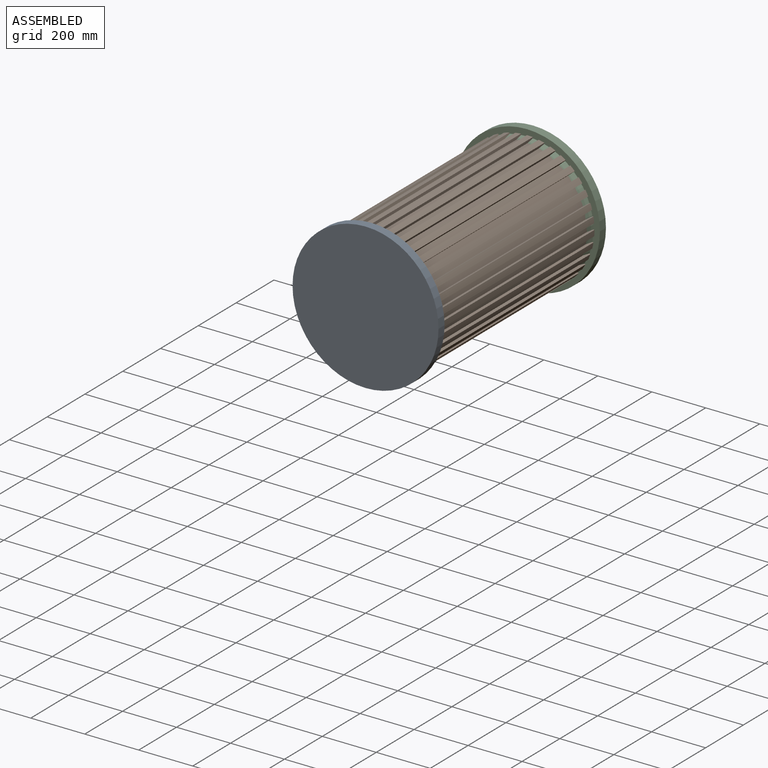
[diagram: assembled view]
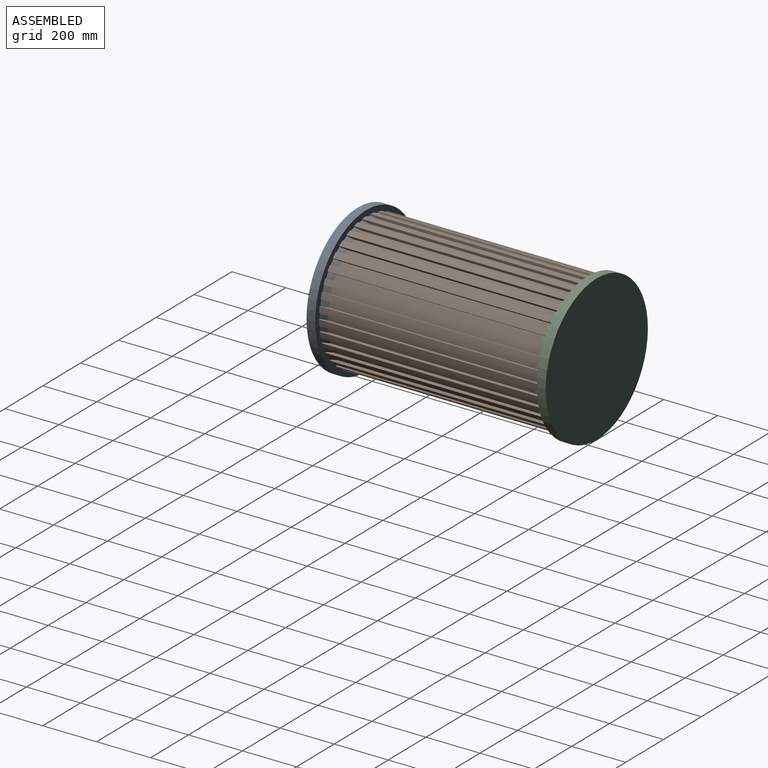
[diagram: assembled view, second angle]
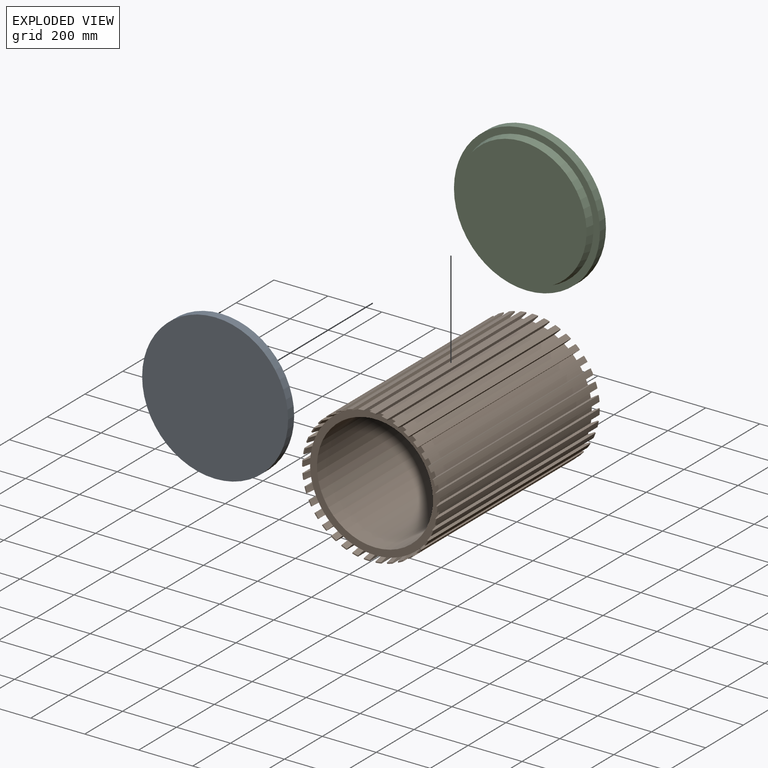
[diagram: exploded view]
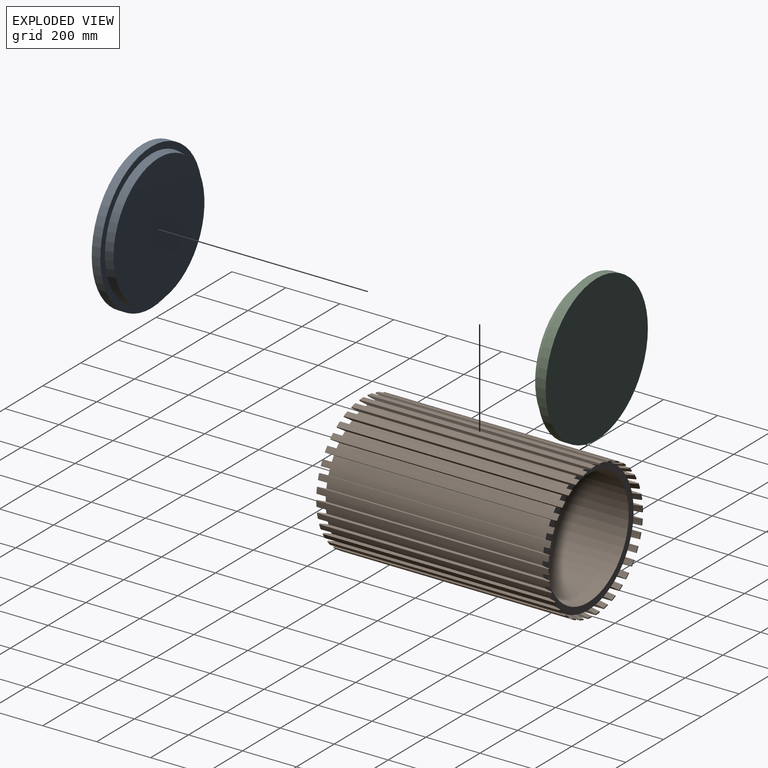
[diagram: exploded view, second angle]
ASSEMBLY  parts=3 mates=2
PART A: 5 faces, bbox 540.8x60x540.8 mm
  f0: plane 540.8x540.8mm, normal (0,1,0), area 229701.2mm2, adj f1
  f1: cylinder r=270.4mm len=540.8mm, axis (0,1,0), area 54419.6mm2, adj f0,f2
  f2: plane 540.8x540.8mm, normal (0,-1,0), area 38965.8mm2, adj f1,f3
  f3: cone r=246.4mm half-angle=12.1deg, axis (0,1,0), area 43793.3mm2, adj f2,f4
  f4: cone r=0mm half-angle=90deg, axis (0,-1,0), area 181559.4mm2, adj f3
PART B: 291 faces, bbox 500.8x860x500.8 mm
  f0: cylinder r=240.4mm len=804mm, axis (0,1,0), area 16867mm2, adj f1,f107,f252,f289
  f1: plane 860x9.96mm, normal (-0.09,0,-1), area 8432mm2, adj f0,f135,f152,f179,f216,f253
  f2: plane 860x10mm, normal (0,0,1), area 8432mm2, adj f3,f135,f152,f179,f216,f253
  f3: cylinder r=240.4mm len=804mm, axis (0,1,0), area 16867mm2, adj f2,f4,f252,f289
  f4: plane 860x9.96mm, normal (0.09,0,-1), area 8432mm2, adj f3,f134,f153,f180,f217,f254
  f5: plane 860x9.85mm, normal (-0.17,0,0.98), area 8432mm2, adj f6,f134,f153,f180,f217,f254
  f6: cylinder r=240.4mm len=804mm, axis (0,1,0), area 16867mm2, adj f5,f7,f252,f289
  f7: plane 860x9.66mm, normal (0.26,0,-0.97), area 8432mm2, adj f6,f133,f154,f181,f218,f255
  f8: plane 860x9.4mm, normal (-0.34,0,0.94), area 8432mm2, adj f9,f133,f154,f181,f218,f255
  f9: cylinder r=240.4mm len=804mm, axis (0,1,0), area 16867mm2, adj f8,f10,f252,f289
  f10: plane 860x9.06mm, normal (0.42,0,-0.91), area 8432mm2, adj f9,f132,f155,f182,f219,f256
  f11: plane 860x8.66mm, normal (-0.5,0,0.87), area 8432mm2, adj f12,f132,f155,f182,f219,f256
  f12: cylinder r=240.4mm len=804mm, axis (0,1,0), area 16867mm2, adj f11,f13,f252,f289
  f13: plane 860x8.19mm, normal (0.57,0,-0.82), area 8432mm2, adj f12,f131,f156,f183,f220,f257
  f14: plane 860x7.66mm, normal (-0.64,0,0.77), area 8432mm2, adj f15,f131,f156,f183,f220,f257
  f15: cylinder r=240.4mm len=804mm, axis (0,1,0), area 16867mm2, adj f14,f16,f252,f289
  f16: plane 860x7.07mm, normal (0.71,0,-0.71), area 8432mm2, adj f15,f130,f157,f184,f221,f258
  f17: plane 860x7.66mm, normal (-0.77,0,0.64), area 8432mm2, adj f18,f130,f157,f184,f221,f258
  f18: cylinder r=240.4mm len=804mm, axis (0,1,0), area 16867mm2, adj f17,f19,f252,f289
  f19: plane 860x8.19mm, normal (0.82,0,-0.57), area 8432mm2, adj f18,f129,f158,f185,f222,f259
  f20: plane 860x8.66mm, normal (-0.87,0,0.5), area 8432mm2, adj f21,f129,f158,f185,f222,f259
  f21: cylinder r=240.4mm len=804mm, axis (0,1,0), area 16867mm2, adj f20,f22,f252,f289
  f22: plane 860x9.06mm, normal (0.91,0,-0.42), area 8432mm2, adj f21,f128,f159,f186,f223,f260
  f23: plane 860x9.4mm, normal (-0.94,0,0.34), area 8432mm2, adj f24,f128,f159,f186,f223,f260
  f24: cylinder r=240.4mm len=804mm, axis (0,1,0), area 16867mm2, adj f23,f25,f252,f289
  f25: plane 860x9.66mm, normal (0.97,0,-0.26), area 8432mm2, adj f24,f127,f160,f187,f224,f261
  f26: plane 860x9.85mm, normal (-0.98,0,0.17), area 8432mm2, adj f27,f127,f160,f187,f224,f261
  f27: cylinder r=240.4mm len=804mm, axis (0,1,0), area 16867mm2, adj f26,f28,f252,f289
  f28: plane 860x9.96mm, normal (1,0,-0.09), area 8432mm2, adj f27,f126,f161,f188,f225,f262
  f29: plane 860x10mm, normal (-1,0,0), area 8432mm2, adj f30,f126,f161,f188,f225,f262
  f30: cylinder r=240.4mm len=804mm, axis (0,1,0), area 16867mm2, adj f29,f31,f252,f289
  f31: plane 860x9.96mm, normal (1,0,0.09), area 8432mm2, adj f30,f125,f162,f189,f226,f263
  f32: plane 860x9.85mm, normal (-0.98,0,-0.17), area 8432mm2, adj f33,f125,f162,f189,f226,f263
  f33: cylinder r=240.4mm len=804mm, axis (0,1,0), area 16867mm2, adj f32,f34,f252,f289
  f34: plane 860x9.66mm, normal (0.97,0,0.26), area 8432mm2, adj f33,f124,f163,f190,f227,f264
  f35: plane 860x9.4mm, normal (-0.94,0,-0.34), area 8432mm2, adj f36,f124,f163,f190,f227,f264
  f36: cylinder r=240.4mm len=804mm, axis (0,1,0), area 16867mm2, adj f35,f37,f252,f289
  f37: plane 860x9.06mm, normal (0.91,0,0.42), area 8432mm2, adj f36,f123,f164,f191,f228,f265
  f38: plane 860x8.66mm, normal (-0.87,0,-0.5), area 8432mm2, adj f39,f123,f164,f191,f228,f265
  f39: cylinder r=240.4mm len=804mm, axis (0,1,0), area 16867mm2, adj f38,f40,f252,f289
  f40: plane 860x8.19mm, normal (0.82,0,0.57), area 8432mm2, adj f39,f122,f165,f192,f229,f266
  f41: plane 860x7.66mm, normal (-0.77,0,-0.64), area 8432mm2, adj f42,f122,f165,f192,f229,f266
  f42: cylinder r=240.4mm len=804mm, axis (0,1,0), area 16867mm2, adj f41,f43,f252,f289
  f43: plane 860x7.07mm, normal (0.71,0,0.71), area 8432mm2, adj f42,f121,f166,f193,f230,f267
  f44: plane 860x7.66mm, normal (-0.64,0,-0.77), area 8432mm2, adj f45,f121,f166,f193,f230,f267
  f45: cylinder r=240.4mm len=804mm, axis (0,1,0), area 16867mm2, adj f44,f46,f252,f289
  f46: plane 860x8.19mm, normal (0.57,0,0.82), area 8432mm2, adj f45,f120,f167,f194,f231,f268
  f47: plane 860x8.66mm, normal (-0.5,0,-0.87), area 8432mm2, adj f48,f120,f167,f194,f231,f268
  f48: cylinder r=240.4mm len=804mm, axis (0,1,0), area 16867mm2, adj f47,f49,f252,f289
  f49: plane 860x9.06mm, normal (0.42,0,0.91), area 8432mm2, adj f48,f119,f168,f195,f232,f269
  f50: plane 860x9.4mm, normal (-0.34,0,-0.94), area 8432mm2, adj f51,f119,f168,f195,f232,f269
  f51: cylinder r=240.4mm len=804mm, axis (0,1,0), area 16867mm2, adj f50,f52,f252,f289
  f52: plane 860x9.66mm, normal (0.26,0,0.97), area 8432mm2, adj f51,f118,f169,f196,f233,f270
  f53: plane 860x9.85mm, normal (-0.17,0,-0.98), area 8432mm2, adj f54,f118,f169,f196,f233,f270
  f54: cylinder r=240.4mm len=804mm, axis (0,1,0), area 16867mm2, adj f53,f55,f252,f289
  f55: plane 860x9.96mm, normal (0.09,0,1), area 8432mm2, adj f54,f117,f170,f197,f234,f271
  f56: plane 860x10mm, normal (0,0,-1), area 8432mm2, adj f57,f117,f170,f197,f234,f271
  f57: cylinder r=240.4mm len=804mm, axis (0,1,0), area 16867mm2, adj f56,f58,f252,f289
  f58: plane 860x9.96mm, normal (-0.09,0,1), area 8432mm2, adj f57,f116,f171,f198,f235,f272
  f59: plane 860x9.85mm, normal (0.17,0,-0.98), area 8432mm2, adj f60,f116,f171,f198,f235,f272
  f60: cylinder r=240.4mm len=804mm, axis (0,1,0), area 16867mm2, adj f59,f61,f252,f289
  f61: plane 860x9.66mm, normal (-0.26,0,0.97), area 8432mm2, adj f60,f115,f172,f199,f236,f273
  f62: plane 860x9.4mm, normal (0.34,0,-0.94), area 8432mm2, adj f63,f115,f172,f199,f236,f273
  f63: cylinder r=240.4mm len=804mm, axis (0,1,0), area 16867mm2, adj f62,f64,f252,f289
  f64: plane 860x9.06mm, normal (-0.42,0,0.91), area 8432mm2, adj f63,f114,f173,f200,f237,f274
  f65: plane 860x8.66mm, normal (0.5,0,-0.87), area 8432mm2, adj f66,f114,f173,f200,f237,f274
  f66: cylinder r=240.4mm len=804mm, axis (0,1,0), area 16867mm2, adj f65,f67,f252,f289
  f67: plane 860x8.19mm, normal (-0.57,0,0.82), area 8432mm2, adj f66,f113,f174,f201,f238,f275
  f68: plane 860x7.66mm, normal (0.64,0,-0.77), area 8432mm2, adj f69,f113,f174,f201,f238,f275
  f69: cylinder r=240.4mm len=804mm, axis (0,1,0), area 16867mm2, adj f68,f70,f252,f289
  f70: plane 860x7.07mm, normal (-0.71,0,0.71), area 8432mm2, adj f69,f112,f175,f202,f239,f276
  f71: plane 860x7.66mm, normal (0.77,0,-0.64), area 8432mm2, adj f72,f112,f175,f202,f239,f276
  f72: cylinder r=240.4mm len=804mm, axis (0,1,0), area 16867mm2, adj f71,f73,f252,f289
  f73: plane 860x8.19mm, normal (-0.82,0,0.57), area 8432mm2, adj f72,f111,f176,f203,f240,f277
  f74: plane 860x8.66mm, normal (0.87,0,-0.5), area 8432mm2, adj f75,f111,f176,f203,f240,f277
  f75: cylinder r=240.4mm len=804mm, axis (0,1,0), area 16867mm2, adj f74,f76,f252,f289
  f76: plane 860x9.06mm, normal (-0.91,0,0.42), area 8432mm2, adj f75,f110,f177,f204,f241,f278
  f77: plane 860x9.4mm, normal (0.94,0,-0.34), area 8432mm2, adj f78,f110,f177,f204,f241,f278
  f78: cylinder r=240.4mm len=804mm, axis (0,1,0), area 16867mm2, adj f77,f79,f252,f289
  f79: plane 860x9.66mm, normal (-0.97,0,0.26), area 8432mm2, adj f78,f109,f178,f205,f242,f279
  f80: plane 860x9.85mm, normal (0.98,0,-0.17), area 8432mm2, adj f81,f109,f178,f205,f242,f279
  f81: cylinder r=240.4mm len=804mm, axis (0,1,0), area 16867mm2, adj f80,f82,f252,f289
  f82: plane 860x9.96mm, normal (-1,0,0.09), area 8432mm2, adj f81,f108,f206,f215,f243,f280
  f83: plane 860x10mm, normal (1,0,0), area 8432mm2, adj f84,f108,f206,f215,f243,f280
  f84: cylinder r=240.4mm len=804mm, axis (0,1,0), area 16867mm2, adj f83,f85,f252,f289
  f85: plane 860x9.96mm, normal (-1,0,-0.09), area 8432mm2, adj f84,f143,f144,f207,f244,f281
  f86: plane 860x9.85mm, normal (0.98,0,0.17), area 8432mm2, adj f87,f143,f144,f207,f244,f281
  f87: cylinder r=240.4mm len=804mm, axis (0,1,0), area 16867mm2, adj f86,f88,f252,f289
  f88: plane 860x9.66mm, normal (-0.97,0,-0.26), area 8432mm2, adj f87,f142,f145,f208,f245,f282
  f89: plane 860x9.4mm, normal (0.94,0,0.34), area 8432mm2, adj f90,f142,f145,f208,f245,f282
  f90: cylinder r=240.4mm len=804mm, axis (0,1,0), area 16867mm2, adj f89,f91,f252,f289
  f91: plane 860x9.06mm, normal (-0.91,0,-0.42), area 8432mm2, adj f90,f141,f146,f209,f246,f283
  f92: plane 860x8.66mm, normal (0.87,0,0.5), area 8432mm2, adj f93,f141,f146,f209,f246,f283
  f93: cylinder r=240.4mm len=804mm, axis (0,1,0), area 16867mm2, adj f92,f94,f252,f289
  f94: plane 860x8.19mm, normal (-0.82,0,-0.57), area 8432mm2, adj f93,f140,f147,f210,f247,f284
  f95: plane 860x7.66mm, normal (0.77,0,0.64), area 8432mm2, adj f96,f140,f147,f210,f247,f284
  f96: cylinder r=240.4mm len=804mm, axis (0,1,0), area 16867mm2, adj f95,f97,f252,f289
  f97: plane 860x7.07mm, normal (-0.71,0,-0.71), area 8432mm2, adj f96,f139,f148,f211,f248,f285
  f98: plane 860x7.66mm, normal (0.64,0,0.77), area 8432mm2, adj f99,f139,f148,f211,f248,f285
  f99: cylinder r=240.4mm len=804mm, axis (0,1,0), area 16867mm2, adj f98,f100,f252,f289
  f100: plane 860x8.19mm, normal (-0.57,0,-0.82), area 8432mm2, adj f99,f138,f149,f212,f249,f286
  f101: plane 860x8.66mm, normal (0.5,0,0.87), area 8432mm2, adj f102,f138,f149,f212,f249,f286
  f102: cylinder r=240.4mm len=804mm, axis (0,1,0), area 16867mm2, adj f101,f103,f252,f289
  f103: plane 860x9.06mm, normal (-0.42,0,-0.91), area 8432mm2, adj f102,f137,f150,f213,f250,f287
  f104: plane 860x9.4mm, normal (0.34,0,0.94), area 8432mm2, adj f105,f137,f150,f213,f250,f287
  f105: cylinder r=240.4mm len=804mm, axis (0,1,0), area 16867mm2, adj f104,f106,f252,f289
  f106: plane 860x9.66mm, normal (-0.26,0,-0.97), area 8432mm2, adj f105,f136,f151,f214,f251,f288
  f107: plane 860x9.85mm, normal (0.17,0,0.98), area 8432mm2, adj f0,f136,f151,f214,f251,f288
  f108: plane 21.82x4.94mm, normal (0,-1,0), area 86.7mm2, adj f82,f83,f206,f280
  f109: plane 22.02x8.59mm, normal (0,-1,0), area 86.7mm2, adj f79,f80,f205,f279
  f110: plane 21.55x11.98mm, normal (0,-1,0), area 86.7mm2, adj f76,f77,f204,f278
  f111: plane 20.42x15.01mm, normal (0,-1,0), area 86.7mm2, adj f73,f74,f203,f277
  f112: plane 18.68x17.59mm, normal (0,-1,0), area 86.7mm2, adj f70,f71,f202,f276
  f113: plane 19.62x16.36mm, normal (0,-1,0), area 86.7mm2, adj f67,f68,f201,f275
  f114: plane 21.07x13.55mm, normal (0,-1,0), area 86.7mm2, adj f64,f65,f200,f274
  f115: plane 21.87x10.33mm, normal (0,-1,0), area 86.7mm2, adj f61,f62,f199,f273
  f116: plane 22.01x6.79mm, normal (0,-1,0), area 86.7mm2, adj f58,f59,f198,f272
  f117: plane 21.82x4.94mm, normal (0,-1,0), area 86.7mm2, adj f55,f56,f197,f271
  f118: plane 22.02x8.59mm, normal (0,-1,0), area 86.7mm2, adj f52,f53,f196,f270
  f119: plane 21.55x11.98mm, normal (0,-1,0), area 86.7mm2, adj f49,f50,f195,f269
  f120: plane 20.42x15.01mm, normal (0,-1,0), area 86.7mm2, adj f46,f47,f194,f268
  f121: plane 18.68x17.59mm, normal (0,-1,0), area 86.7mm2, adj f43,f44,f193,f267
  f122: plane 19.62x16.36mm, normal (0,-1,0), area 86.7mm2, adj f40,f41,f192,f266
  f123: plane 21.07x13.55mm, normal (0,-1,0), area 86.7mm2, adj f37,f38,f191,f265
  f124: plane 21.87x10.33mm, normal (0,-1,0), area 86.7mm2, adj f34,f35,f190,f264
  f125: plane 22.01x6.79mm, normal (0,-1,0), area 86.7mm2, adj f31,f32,f189,f263
  f126: plane 21.82x4.94mm, normal (0,-1,0), area 86.7mm2, adj f28,f29,f188,f262
  f127: plane 22.02x8.59mm, normal (0,-1,0), area 86.7mm2, adj f25,f26,f187,f261
  f128: plane 21.55x11.98mm, normal (0,-1,0), area 86.7mm2, adj f22,f23,f186,f260
  f129: plane 20.42x15.01mm, normal (0,-1,0), area 86.7mm2, adj f19,f20,f185,f259
  f130: plane 18.68x17.59mm, normal (0,-1,0), area 86.7mm2, adj f16,f17,f184,f258
  f131: plane 19.62x16.36mm, normal (0,-1,0), area 86.7mm2, adj f13,f14,f183,f257
  f132: plane 21.07x13.55mm, normal (0,-1,0), area 86.7mm2, adj f10,f11,f182,f256
  f133: plane 21.87x10.33mm, normal (0,-1,0), area 86.7mm2, adj f7,f8,f181,f255
  f134: plane 22.01x6.79mm, normal (0,-1,0), area 86.7mm2, adj f4,f5,f180,f254
  f135: plane 21.82x4.94mm, normal (0,-1,0), area 86.7mm2, adj f1,f2,f179,f253
  f136: plane 22.02x8.59mm, normal (0,-1,0), area 86.7mm2, adj f106,f107,f214,f288
  f137: plane 21.55x11.98mm, normal (0,-1,0), area 86.7mm2, adj f103,f104,f213,f287
  f138: plane 20.42x15.01mm, normal (0,-1,0), area 86.7mm2, adj f100,f101,f212,f286
  f139: plane 18.68x17.59mm, normal (0,-1,0), area 86.7mm2, adj f97,f98,f211,f285
  f140: plane 19.62x16.36mm, normal (0,-1,0), area 86.7mm2, adj f94,f95,f210,f284
  f141: plane 21.07x13.55mm, normal (0,-1,0), area 86.7mm2, adj f91,f92,f209,f283
  f142: plane 21.87x10.33mm, normal (0,-1,0), area 86.7mm2, adj f88,f89,f208,f282
  f143: plane 22.01x6.79mm, normal (0,-1,0), area 86.7mm2, adj f85,f86,f207,f281
  f144: plane 22.01x6.79mm, normal (0,1,0), area 86.7mm2, adj f85,f86,f207,f244
  f145: plane 21.87x10.33mm, normal (0,1,0), area 86.7mm2, adj f88,f89,f208,f245
  f146: plane 21.07x13.55mm, normal (0,1,0), area 86.7mm2, adj f91,f92,f209,f246
  f147: plane 19.62x16.36mm, normal (0,1,0), area 86.7mm2, adj f94,f95,f210,f247
  f148: plane 18.68x17.59mm, normal (0,1,0), area 86.7mm2, adj f97,f98,f211,f248
  f149: plane 20.42x15.01mm, normal (0,1,0), area 86.7mm2, adj f100,f101,f212,f249
  f150: plane 21.55x11.98mm, normal (0,1,0), area 86.7mm2, adj f103,f104,f213,f250
  f151: plane 22.02x8.59mm, normal (0,1,0), area 86.7mm2, adj f106,f107,f214,f251
  f152: plane 21.82x4.94mm, normal (0,1,0), area 86.7mm2, adj f1,f2,f179,f216
  f153: plane 22.01x6.79mm, normal (0,1,0), area 86.7mm2, adj f4,f5,f180,f217
  f154: plane 21.87x10.33mm, normal (0,1,0), area 86.7mm2, adj f7,f8,f181,f218
  f155: plane 21.07x13.55mm, normal (0,1,0), area 86.7mm2, adj f10,f11,f182,f219
  f156: plane 19.62x16.36mm, normal (0,1,0), area 86.7mm2, adj f13,f14,f183,f220
  f157: plane 18.68x17.59mm, normal (0,1,0), area 86.7mm2, adj f16,f17,f184,f221
  f158: plane 20.42x15.01mm, normal (0,1,0), area 86.7mm2, adj f19,f20,f185,f222
  f159: plane 21.55x11.98mm, normal (0,1,0), area 86.7mm2, adj f22,f23,f186,f223
  f160: plane 22.02x8.59mm, normal (0,1,0), area 86.7mm2, adj f25,f26,f187,f224
  f161: plane 21.82x4.94mm, normal (0,1,0), area 86.7mm2, adj f28,f29,f188,f225
  f162: plane 22.01x6.79mm, normal (0,1,0), area 86.7mm2, adj f31,f32,f189,f226
  f163: plane 21.87x10.33mm, normal (0,1,0), area 86.7mm2, adj f34,f35,f190,f227
  f164: plane 21.07x13.55mm, normal (0,1,0), area 86.7mm2, adj f37,f38,f191,f228
  f165: plane 19.62x16.36mm, normal (0,1,0), area 86.7mm2, adj f40,f41,f192,f229
  f166: plane 18.68x17.59mm, normal (0,1,0), area 86.7mm2, adj f43,f44,f193,f230
  f167: plane 20.42x15.01mm, normal (0,1,0), area 86.7mm2, adj f46,f47,f194,f231
  f168: plane 21.55x11.98mm, normal (0,1,0), area 86.7mm2, adj f49,f50,f195,f232
  f169: plane 22.02x8.59mm, normal (0,1,0), area 86.7mm2, adj f52,f53,f196,f233
  f170: plane 21.82x4.94mm, normal (0,1,0), area 86.7mm2, adj f55,f56,f197,f234
  f171: plane 22.01x6.79mm, normal (0,1,0), area 86.7mm2, adj f58,f59,f198,f235
  f172: plane 21.87x10.33mm, normal (0,1,0), area 86.7mm2, adj f61,f62,f199,f236
  f173: plane 21.07x13.55mm, normal (0,1,0), area 86.7mm2, adj f64,f65,f200,f237
  f174: plane 19.62x16.36mm, normal (0,1,0), area 86.7mm2, adj f67,f68,f201,f238
  f175: plane 18.68x17.59mm, normal (0,1,0), area 86.7mm2, adj f70,f71,f202,f239
  f176: plane 20.42x15.01mm, normal (0,1,0), area 86.7mm2, adj f73,f74,f203,f240
  f177: plane 21.55x11.98mm, normal (0,1,0), area 86.7mm2, adj f76,f77,f204,f241
  f178: plane 22.02x8.59mm, normal (0,1,0), area 86.7mm2, adj f79,f80,f205,f242
  f179: cylinder r=250.4mm len=860mm, axis (0,1,0), area 18792.3mm2, adj f1,f2,f135,f152
  f180: cylinder r=250.4mm len=860mm, axis (0,1,0), area 18792.3mm2, adj f4,f5,f134,f153
  f181: cylinder r=250.4mm len=860mm, axis (0,1,0), area 18792.3mm2, adj f7,f8,f133,f154
  f182: cylinder r=250.4mm len=860mm, axis (0,1,0), area 18792.3mm2, adj f10,f11,f132,f155
  f183: cylinder r=250.4mm len=860mm, axis (0,1,0), area 18792.3mm2, adj f13,f14,f131,f156
  f184: cylinder r=250.4mm len=860mm, axis (0,1,0), area 18792.3mm2, adj f16,f17,f130,f157
  f185: cylinder r=250.4mm len=860mm, axis (0,1,0), area 18792.3mm2, adj f19,f20,f129,f158
  f186: cylinder r=250.4mm len=860mm, axis (0,1,0), area 18792.3mm2, adj f22,f23,f128,f159
  f187: cylinder r=250.4mm len=860mm, axis (0,1,0), area 18792.3mm2, adj f25,f26,f127,f160
  f188: cylinder r=250.4mm len=860mm, axis (0,1,0), area 18792.3mm2, adj f28,f29,f126,f161
  f189: cylinder r=250.4mm len=860mm, axis (0,1,0), area 18792.3mm2, adj f31,f32,f125,f162
  f190: cylinder r=250.4mm len=860mm, axis (0,1,0), area 18792.3mm2, adj f34,f35,f124,f163
  f191: cylinder r=250.4mm len=860mm, axis (0,1,0), area 18792.3mm2, adj f37,f38,f123,f164
  f192: cylinder r=250.4mm len=860mm, axis (0,1,0), area 18792.3mm2, adj f40,f41,f122,f165
  f193: cylinder r=250.4mm len=860mm, axis (0,1,0), area 18792.3mm2, adj f43,f44,f121,f166
  f194: cylinder r=250.4mm len=860mm, axis (0,1,0), area 18792.3mm2, adj f46,f47,f120,f167
  f195: cylinder r=250.4mm len=860mm, axis (0,1,0), area 18792.3mm2, adj f49,f50,f119,f168
  f196: cylinder r=250.4mm len=860mm, axis (0,1,0), area 18792.3mm2, adj f52,f53,f118,f169
  f197: cylinder r=250.4mm len=860mm, axis (0,1,0), area 18792.3mm2, adj f55,f56,f117,f170
  f198: cylinder r=250.4mm len=860mm, axis (0,1,0), area 18792.3mm2, adj f58,f59,f116,f171
  f199: cylinder r=250.4mm len=860mm, axis (0,1,0), area 18792.3mm2, adj f61,f62,f115,f172
  f200: cylinder r=250.4mm len=860mm, axis (0,1,0), area 18792.3mm2, adj f64,f65,f114,f173
  f201: cylinder r=250.4mm len=860mm, axis (0,1,0), area 18792.3mm2, adj f67,f68,f113,f174
  f202: cylinder r=250.4mm len=860mm, axis (0,1,0), area 18792.3mm2, adj f70,f71,f112,f175
  f203: cylinder r=250.4mm len=860mm, axis (0,1,0), area 18792.3mm2, adj f73,f74,f111,f176
  f204: cylinder r=250.4mm len=860mm, axis (0,1,0), area 18792.3mm2, adj f76,f77,f110,f177
  f205: cylinder r=250.4mm len=860mm, axis (0,1,0), area 18792.3mm2, adj f79,f80,f109,f178
  f206: cylinder r=250.4mm len=860mm, axis (0,1,0), area 18792.3mm2, adj f82,f83,f108,f215
  f207: cylinder r=250.4mm len=860mm, axis (0,1,0), area 18792.3mm2, adj f85,f86,f143,f144
  f208: cylinder r=250.4mm len=860mm, axis (0,1,0), area 18792.3mm2, adj f88,f89,f142,f145
  f209: cylinder r=250.4mm len=860mm, axis (0,1,0), area 18792.3mm2, adj f91,f92,f141,f146
  f210: cylinder r=250.4mm len=860mm, axis (0,1,0), area 18792.3mm2, adj f94,f95,f140,f147
  f211: cylinder r=250.4mm len=860mm, axis (0,1,0), area 18792.3mm2, adj f97,f98,f139,f148
  f212: cylinder r=250.4mm len=860mm, axis (0,1,0), area 18792.3mm2, adj f100,f101,f138,f149
  f213: cylinder r=250.4mm len=860mm, axis (0,1,0), area 18792.3mm2, adj f103,f104,f137,f150
  f214: cylinder r=250.4mm len=860mm, axis (0,1,0), area 18792.3mm2, adj f106,f107,f136,f151
  f215: plane 21.82x4.94mm, normal (0,1,0), area 86.7mm2, adj f82,f83,f206,f243
  f216: cone r=240.4mm half-angle=12.1deg, axis (0,1,0), area 608.2mm2, adj f1,f2,f152,f252
  f217: cone r=240.4mm half-angle=12.1deg, axis (0,1,0), area 608.2mm2, adj f4,f5,f153,f252
  f218: cone r=240.4mm half-angle=12.1deg, axis (0,1,0), area 608.2mm2, adj f7,f8,f154,f252
  f219: cone r=240.4mm half-angle=12.1deg, axis (0,1,0), area 608.2mm2, adj f10,f11,f155,f252
  f220: cone r=240.4mm half-angle=12.1deg, axis (0,1,0), area 608.2mm2, adj f13,f14,f156,f252
  f221: cone r=240.4mm half-angle=12.1deg, axis (0,1,0), area 608.2mm2, adj f16,f17,f157,f252
  f222: cone r=240.4mm half-angle=12.1deg, axis (0,1,0), area 608.2mm2, adj f19,f20,f158,f252
  f223: cone r=240.4mm half-angle=12.1deg, axis (0,1,0), area 608.2mm2, adj f22,f23,f159,f252
  f224: cone r=240.4mm half-angle=12.1deg, axis (0,1,0), area 608.2mm2, adj f25,f26,f160,f252
  f225: cone r=240.4mm half-angle=12.1deg, axis (0,1,0), area 608.2mm2, adj f28,f29,f161,f252
  f226: cone r=240.4mm half-angle=12.1deg, axis (0,1,0), area 608.2mm2, adj f31,f32,f162,f252
  f227: cone r=240.4mm half-angle=12.1deg, axis (0,1,0), area 608.2mm2, adj f34,f35,f163,f252
  f228: cone r=240.4mm half-angle=12.1deg, axis (0,1,0), area 608.2mm2, adj f37,f38,f164,f252
  f229: cone r=240.4mm half-angle=12.1deg, axis (0,1,0), area 608.2mm2, adj f40,f41,f165,f252
  f230: cone r=240.4mm half-angle=12.1deg, axis (0,1,0), area 608.2mm2, adj f43,f44,f166,f252
  f231: cone r=240.4mm half-angle=12.1deg, axis (0,1,0), area 608.2mm2, adj f46,f47,f167,f252
  f232: cone r=240.4mm half-angle=12.1deg, axis (0,1,0), area 608.2mm2, adj f49,f50,f168,f252
  f233: cone r=240.4mm half-angle=12.1deg, axis (0,1,0), area 608.2mm2, adj f52,f53,f169,f252
  f234: cone r=240.4mm half-angle=12.1deg, axis (0,1,0), area 608.2mm2, adj f55,f56,f170,f252
  f235: cone r=240.4mm half-angle=12.1deg, axis (0,1,0), area 608.2mm2, adj f58,f59,f171,f252
  f236: cone r=240.4mm half-angle=12.1deg, axis (0,1,0), area 608.2mm2, adj f61,f62,f172,f252
  f237: cone r=240.4mm half-angle=12.1deg, axis (0,1,0), area 608.2mm2, adj f64,f65,f173,f252
  f238: cone r=240.4mm half-angle=12.1deg, axis (0,1,0), area 608.2mm2, adj f67,f68,f174,f252
  f239: cone r=240.4mm half-angle=12.1deg, axis (0,1,0), area 608.2mm2, adj f70,f71,f175,f252
  f240: cone r=240.4mm half-angle=12.1deg, axis (0,1,0), area 608.2mm2, adj f73,f74,f176,f252
  f241: cone r=240.4mm half-angle=12.1deg, axis (0,1,0), area 608.2mm2, adj f76,f77,f177,f252
  f242: cone r=240.4mm half-angle=12.1deg, axis (0,1,0), area 608.2mm2, adj f79,f80,f178,f252
  f243: cone r=240.4mm half-angle=12.1deg, axis (0,1,0), area 608.2mm2, adj f82,f83,f215,f252
  f244: cone r=240.4mm half-angle=12.1deg, axis (0,1,0), area 608.2mm2, adj f85,f86,f144,f252
  f245: cone r=240.4mm half-angle=12.1deg, axis (0,1,0), area 608.2mm2, adj f88,f89,f145,f252
  f246: cone r=240.4mm half-angle=12.1deg, axis (0,1,0), area 608.2mm2, adj f91,f92,f146,f252
  f247: cone r=240.4mm half-angle=12.1deg, axis (0,1,0), area 608.2mm2, adj f94,f95,f147,f252
  f248: cone r=240.4mm half-angle=12.1deg, axis (0,1,0), area 608.2mm2, adj f97,f98,f148,f252
  f249: cone r=240.4mm half-angle=12.1deg, axis (0,1,0), area 608.2mm2, adj f100,f101,f149,f252
  f250: cone r=240.4mm half-angle=12.1deg, axis (0,1,0), area 608.2mm2, adj f103,f104,f150,f252
  f251: cone r=240.4mm half-angle=12.1deg, axis (0,1,0), area 608.2mm2, adj f106,f107,f151,f252
  f252: plane 480.8x480.8mm, normal (0,1,0), area 36339.3mm2, adj f0,f3,f6,f9,f12,f15,f18,f21
  f253: cone r=240.4mm half-angle=12.1deg, axis (0,-1,0), area 608.2mm2, adj f1,f2,f135,f289
  f254: cone r=240.4mm half-angle=12.1deg, axis (0,-1,0), area 608.2mm2, adj f4,f5,f134,f289
  f255: cone r=240.4mm half-angle=12.1deg, axis (0,-1,0), area 608.2mm2, adj f7,f8,f133,f289
  f256: cone r=240.4mm half-angle=12.1deg, axis (0,-1,0), area 608.2mm2, adj f10,f11,f132,f289
  f257: cone r=240.4mm half-angle=12.1deg, axis (0,-1,0), area 608.2mm2, adj f13,f14,f131,f289
  f258: cone r=240.4mm half-angle=12.1deg, axis (0,-1,0), area 608.2mm2, adj f16,f17,f130,f289
  f259: cone r=240.4mm half-angle=12.1deg, axis (0,-1,0), area 608.2mm2, adj f19,f20,f129,f289
  f260: cone r=240.4mm half-angle=12.1deg, axis (0,-1,0), area 608.2mm2, adj f22,f23,f128,f289
  f261: cone r=240.4mm half-angle=12.1deg, axis (0,-1,0), area 608.2mm2, adj f25,f26,f127,f289
  f262: cone r=240.4mm half-angle=12.1deg, axis (0,-1,0), area 608.2mm2, adj f28,f29,f126,f289
  f263: cone r=240.4mm half-angle=12.1deg, axis (0,-1,0), area 608.2mm2, adj f31,f32,f125,f289
  f264: cone r=240.4mm half-angle=12.1deg, axis (0,-1,0), area 608.2mm2, adj f34,f35,f124,f289
  f265: cone r=240.4mm half-angle=12.1deg, axis (0,-1,0), area 608.2mm2, adj f37,f38,f123,f289
  f266: cone r=240.4mm half-angle=12.1deg, axis (0,-1,0), area 608.2mm2, adj f40,f41,f122,f289
  f267: cone r=240.4mm half-angle=12.1deg, axis (0,-1,0), area 608.2mm2, adj f43,f44,f121,f289
  f268: cone r=240.4mm half-angle=12.1deg, axis (0,-1,0), area 608.2mm2, adj f46,f47,f120,f289
  f269: cone r=240.4mm half-angle=12.1deg, axis (0,-1,0), area 608.2mm2, adj f49,f50,f119,f289
  f270: cone r=240.4mm half-angle=12.1deg, axis (0,-1,0), area 608.2mm2, adj f52,f53,f118,f289
  f271: cone r=240.4mm half-angle=12.1deg, axis (0,-1,0), area 608.2mm2, adj f55,f56,f117,f289
  f272: cone r=240.4mm half-angle=12.1deg, axis (0,-1,0), area 608.2mm2, adj f58,f59,f116,f289
  f273: cone r=240.4mm half-angle=12.1deg, axis (0,-1,0), area 608.2mm2, adj f61,f62,f115,f289
  f274: cone r=240.4mm half-angle=12.1deg, axis (0,-1,0), area 608.2mm2, adj f64,f65,f114,f289
  f275: cone r=240.4mm half-angle=12.1deg, axis (0,-1,0), area 608.2mm2, adj f67,f68,f113,f289
  f276: cone r=240.4mm half-angle=12.1deg, axis (0,-1,0), area 608.2mm2, adj f70,f71,f112,f289
  f277: cone r=240.4mm half-angle=12.1deg, axis (0,-1,0), area 608.2mm2, adj f73,f74,f111,f289
  f278: cone r=240.4mm half-angle=12.1deg, axis (0,-1,0), area 608.2mm2, adj f76,f77,f110,f289
  f279: cone r=240.4mm half-angle=12.1deg, axis (0,-1,0), area 608.2mm2, adj f79,f80,f109,f289
  f280: cone r=240.4mm half-angle=12.1deg, axis (0,-1,0), area 608.2mm2, adj f82,f83,f108,f289
  f281: cone r=240.4mm half-angle=12.1deg, axis (0,-1,0), area 608.2mm2, adj f85,f86,f143,f289
  f282: cone r=240.4mm half-angle=12.1deg, axis (0,-1,0), area 608.2mm2, adj f88,f89,f142,f289
  f283: cone r=240.4mm half-angle=12.1deg, axis (0,-1,0), area 608.2mm2, adj f91,f92,f141,f289
  f284: cone r=240.4mm half-angle=12.1deg, axis (0,-1,0), area 608.2mm2, adj f94,f95,f140,f289
  f285: cone r=240.4mm half-angle=12.1deg, axis (0,-1,0), area 608.2mm2, adj f97,f98,f139,f289
  f286: cone r=240.4mm half-angle=12.1deg, axis (0,-1,0), area 608.2mm2, adj f100,f101,f138,f289
  f287: cone r=240.4mm half-angle=12.1deg, axis (0,-1,0), area 608.2mm2, adj f103,f104,f137,f289
  f288: cone r=240.4mm half-angle=12.1deg, axis (0,-1,0), area 608.2mm2, adj f106,f107,f136,f289
  f289: plane 480.8x480.8mm, normal (0,-1,0), area 36339.3mm2, adj f0,f3,f6,f9,f12,f15,f18,f21
  f290: cylinder r=215mm len=804mm, axis (0,1,0), area 1086111.4mm2, adj f252,f289
PART C: same geometry as A
PLACE A rot(axis=(1,0,0),180deg) t=(18.39,-1108.44,98.5)mm
PLACE B t=(18.39,-258.47,98.5)mm
PLACE C t=(18.39,-286.47,98.5)mm
MATE revolute B.f0 <-> C.f1  axis (0,1,0) through (18.39,-286.47,98.5)mm
MATE cylindrical B.f0 <-> A.f1  axis (0,1,0) through (18.39,-1090.47,98.5)mm
